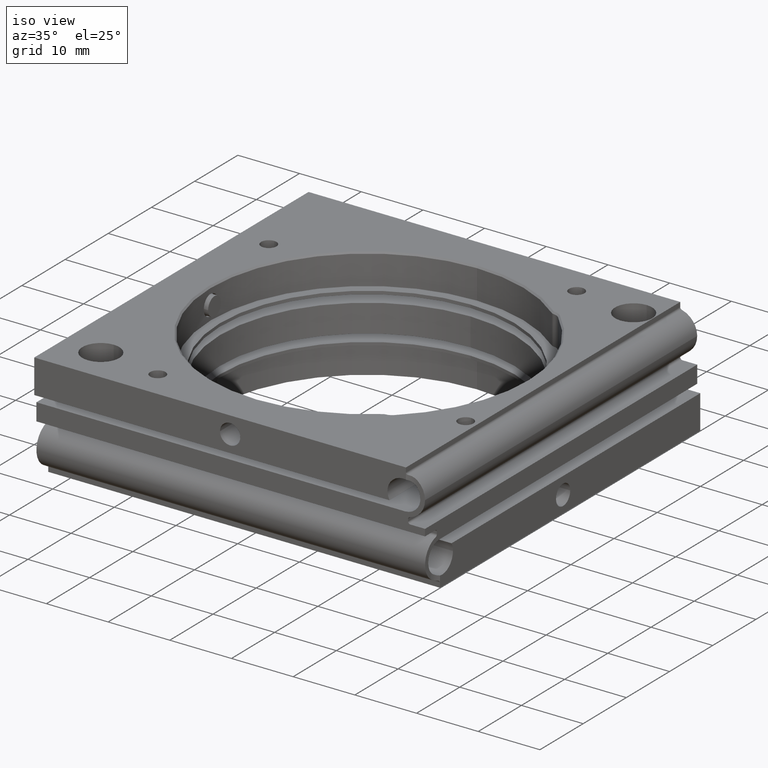
[diagram: clean part render]
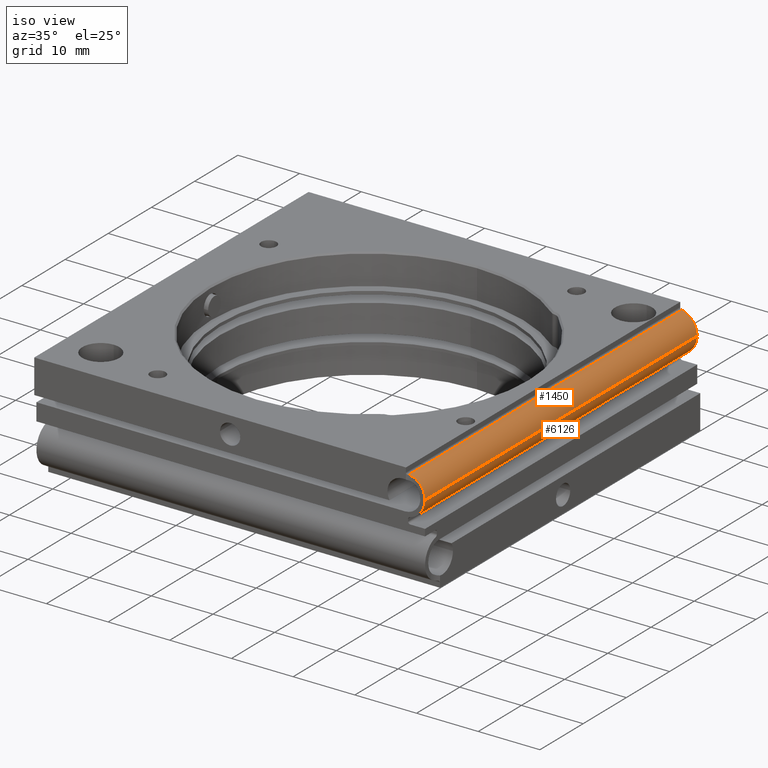
[diagram: same view with one multi-face feature highlighted, each face labeled with its STEP entity id]
A machine part, iso view. The highlighted faces form ONE feature: a constant-radius fillet chain: 2 tangent blend faces with common blend radius 3.25 mm. The faces share edges in the B-rep.
Their STEP definitions:
[1] entity #6126 (Cylinder):
#4 = CARTESIAN_POINT ( 'NONE',  ( 31.25000000000002132, 31.75000000000000000, 4.749999999999997335 ) ) ;
#623 = DIRECTION ( 'NONE',  ( -9.823725385216690060E-17, -1.000000000000000000, 5.551115123125782086E-17 ) ) ;
#757 = ORIENTED_EDGE ( 'NONE', *, *, #6138, .T. ) ;
#1087 = CARTESIAN_POINT ( 'NONE',  ( 28.76736111111112493, -31.24999999999998579, 1.591890292413147279 ) ) ;
#1397 = CARTESIAN_POINT ( 'NONE',  ( 28.00000000000001421, -31.24999999999998579, 4.750000000000000888 ) ) ;
#1838 = EDGE_LOOP ( 'NONE', ( #5221, #7236, #757, #9562 ) ) ;
#1934 = CARTESIAN_POINT ( 'NONE',  ( 28.76736111111113203, 31.75000000000000000, 1.591890292413143726 ) ) ;
#2036 = CARTESIAN_POINT ( 'NONE',  ( 31.25000000000001421, -31.24999999999998579, 4.749999999999999112 ) ) ;
#2110 = DIRECTION ( 'NONE',  ( 9.823725385216690060E-17, 1.000000000000000000, -5.551115123125782086E-17 ) ) ;
#2157 = CYLINDRICAL_SURFACE ( 'NONE', #9062, 3.249999999999999556 ) ;
#2286 = LINE ( 'NONE', #3868, #3655 ) ;
#3254 = CARTESIAN_POINT ( 'NONE',  ( 31.25000000000002132, 31.75000000000000000, 4.749999999999999112 ) ) ;
#3655 = VECTOR ( 'NONE', #8385, 1000.000000000000000 ) ;
#3862 = CIRCLE ( 'NONE', #8718, 3.249999999999999556 ) ;
#3868 = CARTESIAN_POINT ( 'NONE',  ( 28.76736111111112848, 31.75000000000000000, 1.591890292413143504 ) ) ;
#4496 = LINE ( 'NONE', #4, #6004 ) ;
#4523 = DIRECTION ( 'NONE',  ( 1.000000000000000000, 0.000000000000000000, -8.006416042969880035E-16 ) ) ;
#4542 = AXIS2_PLACEMENT_3D ( 'NONE', #1397, #2110, #4523 ) ;
#4670 = CARTESIAN_POINT ( 'NONE',  ( 28.00000000000002132, 31.75000000000000000, 4.749999999999997335 ) ) ;
#5182 = FACE_OUTER_BOUND ( 'NONE', #1838, .T. ) ;
#5195 = VERTEX_POINT ( 'NONE', #1934 ) ;
#5221 = ORIENTED_EDGE ( 'NONE', *, *, #6853, .T. ) ;
#5423 = EDGE_CURVE ( 'NONE', #10001, #9743, #4496, .T. ) ;
#5984 = CARTESIAN_POINT ( 'NONE',  ( 28.00000000000002132, 31.75000000000000000, 4.749999999999997335 ) ) ;
#6004 = VECTOR ( 'NONE', #7572, 1000.000000000000000 ) ;
#6126 = ADVANCED_FACE ( 'NONE', ( #5182 ), #2157, .T. ) ;
#6138 = EDGE_CURVE ( 'NONE', #9743, #8082, #9388, .T. ) ;
#6853 = EDGE_CURVE ( 'NONE', #5195, #10001, #3862, .T. ) ;
#7236 = ORIENTED_EDGE ( 'NONE', *, *, #5423, .T. ) ;
#7502 = DIRECTION ( 'NONE',  ( 1.000000000000000000, 0.000000000000000000, 0.000000000000000000 ) ) ;
#7572 = DIRECTION ( 'NONE',  ( -9.823725385216690060E-17, -1.000000000000000000, 5.551115123125782086E-17 ) ) ;
#7647 = DIRECTION ( 'NONE',  ( 1.000000000000000000, 0.000000000000000000, 0.000000000000000000 ) ) ;
#8082 = VERTEX_POINT ( 'NONE', #1087 ) ;
#8365 = DIRECTION ( 'NONE',  ( -9.823725385216690060E-17, -1.000000000000000000, 5.551115123125782086E-17 ) ) ;
#8385 = DIRECTION ( 'NONE',  ( 9.823725385216690060E-17, 1.000000000000000000, -5.551115123125782086E-17 ) ) ;
#8718 = AXIS2_PLACEMENT_3D ( 'NONE', #4670, #623, #7647 ) ;
#8742 = EDGE_CURVE ( 'NONE', #8082, #5195, #2286, .T. ) ;
#9062 = AXIS2_PLACEMENT_3D ( 'NONE', #5984, #8365, #7502 ) ;
#9388 = CIRCLE ( 'NONE', #4542, 3.249999999999999556 ) ;
#9562 = ORIENTED_EDGE ( 'NONE', *, *, #8742, .T. ) ;
#9743 = VERTEX_POINT ( 'NONE', #2036 ) ;
#10001 = VERTEX_POINT ( 'NONE', #3254 ) ;
[2] entity #1450 (Cylinder):
#4 = CARTESIAN_POINT ( 'NONE',  ( 31.25000000000002132, 31.75000000000000000, 4.749999999999997335 ) ) ;
#616 = CARTESIAN_POINT ( 'NONE',  ( 28.76736111111112493, -31.57500543228292855, 7.908109707586853609 ) ) ;
#676 = LINE ( 'NONE', #6895, #8609 ) ;
#728 = VERTEX_POINT ( 'NONE', #2237 ) ;
#1284 = CARTESIAN_POINT ( 'NONE',  ( 28.76736111111112493, -31.57500543228292855, 7.908109707586853609 ) ) ;
#1423 = CARTESIAN_POINT ( 'NONE',  ( 28.00000000000002132, 31.75000000000000000, 4.749999999999997335 ) ) ;
#1450 = ADVANCED_FACE ( 'NONE', ( #3505 ), #5185, .T. ) ;
#1538 = ORIENTED_EDGE ( 'NONE', *, *, #5246, .T. ) ;
#1962 = EDGE_CURVE ( 'NONE', #10001, #2019, #5906, .T. ) ;
#2019 = VERTEX_POINT ( 'NONE', #2603 ) ;
#2036 = CARTESIAN_POINT ( 'NONE',  ( 31.25000000000001421, -31.24999999999998579, 4.749999999999999112 ) ) ;
#2237 = CARTESIAN_POINT ( 'NONE',  ( 30.00000000000001776, -31.25000000000000000, 7.311737691489899049 ) ) ;
#2603 = CARTESIAN_POINT ( 'NONE',  ( 28.76736111111113559, 31.75000000000000000, 7.908109707586850057 ) ) ;
#3028 = DIRECTION ( 'NONE',  ( -9.823725385216690060E-17, -1.000000000000000000, 5.551115123125782086E-17 ) ) ;
#3236 = ORIENTED_EDGE ( 'NONE', *, *, #1962, .T. ) ;
#3254 = CARTESIAN_POINT ( 'NONE',  ( 31.25000000000002132, 31.75000000000000000, 4.749999999999999112 ) ) ;
#3424 = CARTESIAN_POINT ( 'NONE',  ( 28.00000000000001421, -31.24999999999998579, 4.750000000000000888 ) ) ;
#3505 = FACE_OUTER_BOUND ( 'NONE', #4890, .T. ) ;
#3619 = DIRECTION ( 'NONE',  ( 9.823725385216690060E-17, 1.000000000000000000, -5.551115123125782086E-17 ) ) ;
#3760 = EDGE_CURVE ( 'NONE', #2019, #9559, #676, .T. ) ;
#4496 = LINE ( 'NONE', #4, #6004 ) ;
#4555 = ORIENTED_EDGE ( 'NONE', *, *, #5423, .F. ) ;
#4890 = EDGE_LOOP ( 'NONE', ( #4555, #3236, #5789, #5301, #1538 ) ) ;
#4992 = CARTESIAN_POINT ( 'NONE',  ( 28.00000000000002132, 31.75000000000000000, 4.749999999999997335 ) ) ;
#5185 = CYLINDRICAL_SURFACE ( 'NONE', #7671, 3.249999999999999556 ) ;
#5246 = EDGE_CURVE ( 'NONE', #728, #9743, #9552, .T. ) ;
#5301 = ORIENTED_EDGE ( 'NONE', *, *, #9404, .T. ) ;
#5423 = EDGE_CURVE ( 'NONE', #10001, #9743, #4496, .T. ) ;
#5789 = ORIENTED_EDGE ( 'NONE', *, *, #3760, .T. ) ;
#5906 = CIRCLE ( 'NONE', #6873, 3.249999999999999556 ) ;
#6004 = VECTOR ( 'NONE', #7572, 1000.000000000000000 ) ;
#6668 = DIRECTION ( 'NONE',  ( 1.000000000000000000, 0.000000000000000000, 7.205774438672891736E-15 ) ) ;
#6683 = CARTESIAN_POINT ( 'NONE',  ( 29.81023702222728744, -31.25000000000000000, 7.459889454570975076 ) ) ;
#6784 = CARTESIAN_POINT ( 'NONE',  ( 28.97258075952403544, -31.45870090299695576, 7.858245202547762709 ) ) ;
#6873 = AXIS2_PLACEMENT_3D ( 'NONE', #1423, #9407, #10002 ) ;
#6895 = CARTESIAN_POINT ( 'NONE',  ( 28.76736111111113203, 31.75000000000000000, 7.908109707586850057 ) ) ;
#7306 = DIRECTION ( 'NONE',  ( 1.000000000000000000, 0.000000000000000000, 0.000000000000000000 ) ) ;
#7437 = CARTESIAN_POINT ( 'NONE',  ( 29.60716026191373373, -31.27141869312923816, 7.584533274308135731 ) ) ;
#7572 = DIRECTION ( 'NONE',  ( -9.823725385216690060E-17, -1.000000000000000000, 5.551115123125782086E-17 ) ) ;
#7671 = AXIS2_PLACEMENT_3D ( 'NONE', #4992, #9734, #7306 ) ;
#7966 = B_SPLINE_CURVE_WITH_KNOTS ( 'NONE', 3,
 ( #1284, #6784, #9863, #7437, #6683, #9722 ),
 .UNSPECIFIED., .F., .F.,
 ( 4, 2, 4 ),
 ( 0.000000000000000000, 0.0007118922461806830373, 0.001423784492361366075 ),
 .UNSPECIFIED. ) ;
#8609 = VECTOR ( 'NONE', #3028, 1000.000000000000000 ) ;
#9404 = EDGE_CURVE ( 'NONE', #9559, #728, #7966, .T. ) ;
#9407 = DIRECTION ( 'NONE',  ( -9.823725385216690060E-17, -1.000000000000000000, 5.551115123125782086E-17 ) ) ;
#9552 = CIRCLE ( 'NONE', #10030, 3.249999999999999556 ) ;
#9559 = VERTEX_POINT ( 'NONE', #616 ) ;
#9722 = CARTESIAN_POINT ( 'NONE',  ( 30.00000000000001776, -31.25000000000000000, 7.311737691489899049 ) ) ;
#9734 = DIRECTION ( 'NONE',  ( -9.823725385216690060E-17, -1.000000000000000000, 5.551115123125782086E-17 ) ) ;
#9743 = VERTEX_POINT ( 'NONE', #2036 ) ;
#9863 = CARTESIAN_POINT ( 'NONE',  ( 29.18337723049485177, -31.37706603401727889, 7.785977819579875892 ) ) ;
#10001 = VERTEX_POINT ( 'NONE', #3254 ) ;
#10002 = DIRECTION ( 'NONE',  ( 1.000000000000000000, 0.000000000000000000, 0.000000000000000000 ) ) ;
#10030 = AXIS2_PLACEMENT_3D ( 'NONE', #3424, #3619, #6668 ) ;